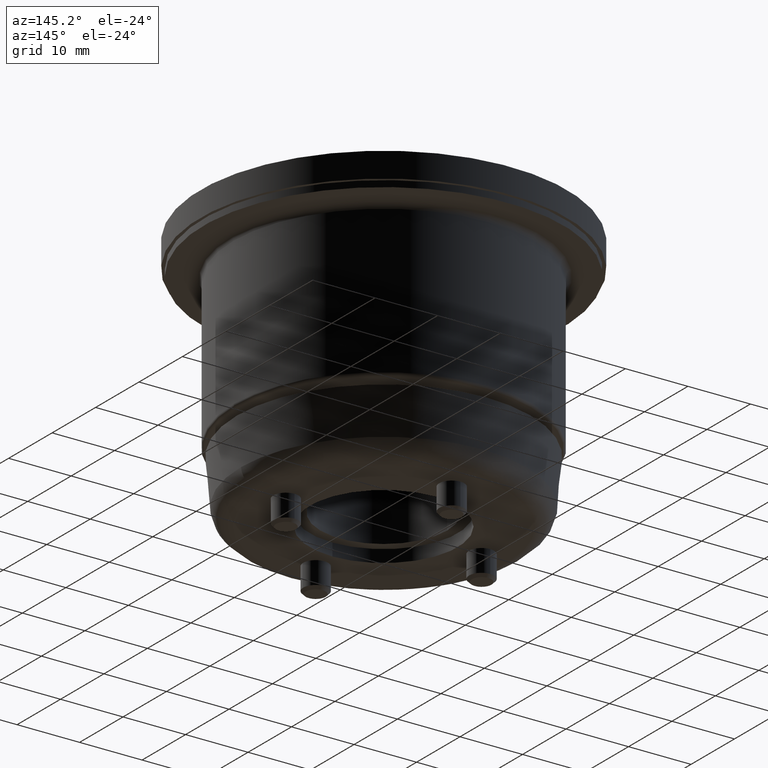
[diagram: clean part render]
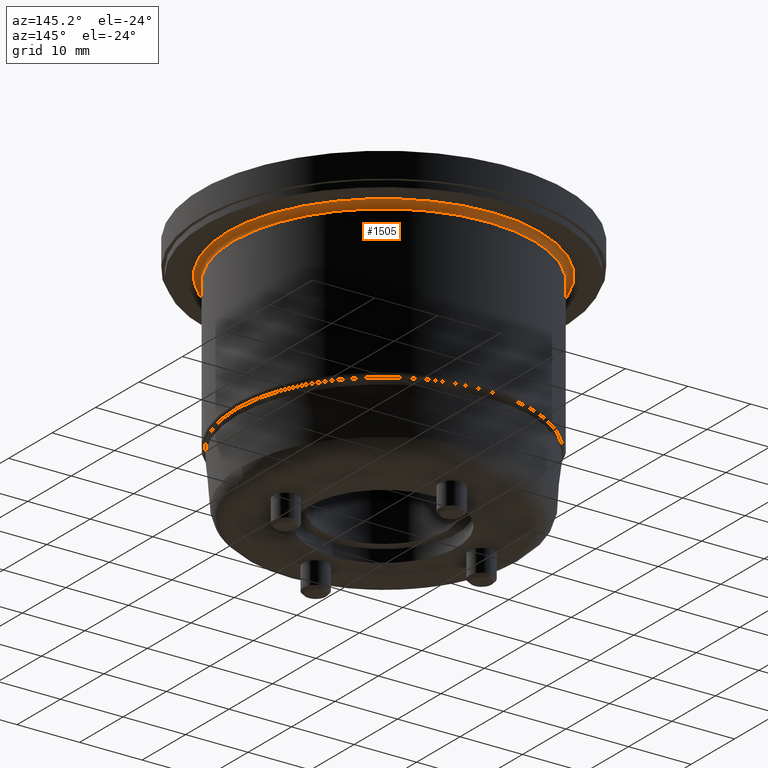
[diagram: same view with one face highlighted and labeled with its STEP entity id]
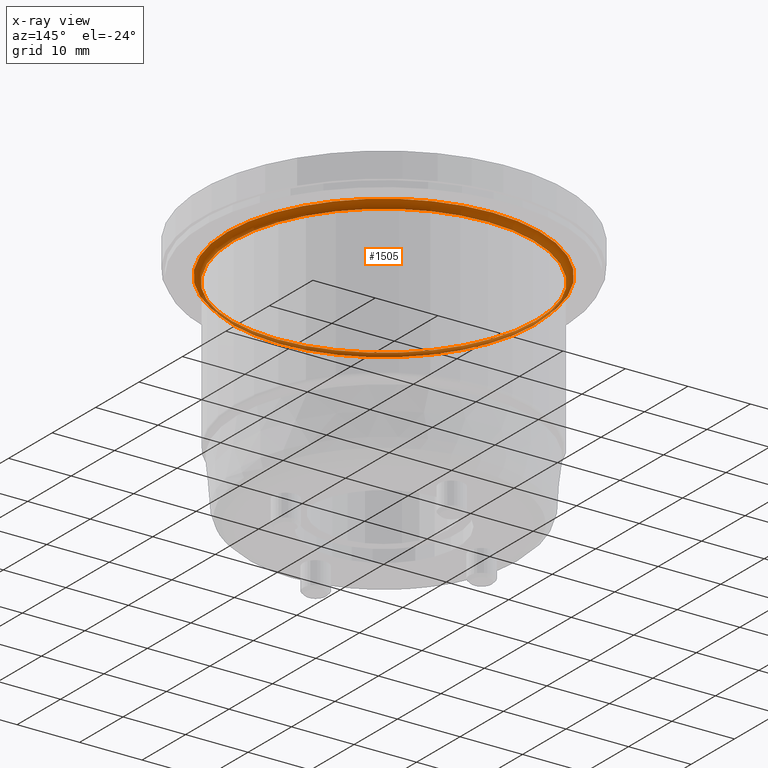
[diagram: x-ray of the same camera — body ghosted, the highlighted face saturated]
A machine part, auxiliary view. The second image highlights one B-rep face of the part: STEP entity #1505.
The next image is the same camera in x-ray: the body ghosted, the highlighted face saturated — about 25% of this face is hidden behind the body in this view.
In plain terms, the highlighted toroidal blend (fillet) surface has major radius 25 mm and minor (blend) radius 1 mm.
Its self-contained STEP definition (entity closure, byte-faithful):
#312=FACE_OUTER_BOUND('',#401,.T.);
#401=EDGE_LOOP('',(#1075,#1076,#1077,#1078));
#536=CIRCLE('',#1721,25.);
#537=CIRCLE('',#1722,1.);
#538=CIRCLE('',#1723,24.);
#686=VERTEX_POINT('',#2546);
#687=VERTEX_POINT('',#2548);
#843=EDGE_CURVE('',#686,#686,#536,.T.);
#844=EDGE_CURVE('',#686,#687,#537,.T.);
#845=EDGE_CURVE('',#687,#687,#538,.T.);
#1075=ORIENTED_EDGE('',*,*,#843,.T.);
#1076=ORIENTED_EDGE('',*,*,#844,.T.);
#1077=ORIENTED_EDGE('',*,*,#845,.T.);
#1078=ORIENTED_EDGE('',*,*,#844,.F.);
#1490=TOROIDAL_SURFACE('',#1720,25.,1.);
#1505=ADVANCED_FACE('',(#312),#1490,.F.);
#1720=AXIS2_PLACEMENT_3D('',#2545,#1995,#1996);
#1721=AXIS2_PLACEMENT_3D('',#2547,#1997,#1998);
#1722=AXIS2_PLACEMENT_3D('',#2549,#1999,#2000);
#1723=AXIS2_PLACEMENT_3D('',#2550,#2001,#2002);
#1995=DIRECTION('center_axis',(0.,1.83697019872103E-16,-1.));
#1996=DIRECTION('ref_axis',(-1.,0.,0.));
#1997=DIRECTION('center_axis',(0.,1.83697019872103E-16,-1.));
#1998=DIRECTION('ref_axis',(-1.,7.65404249467096E-18,1.40602479624549E-33));
#1999=DIRECTION('center_axis',(-1.22464679914735E-16,-1.,-1.83697019872103E-16));
#2000=DIRECTION('ref_axis',(1.,-1.22464679914735E-16,0.));
#2001=DIRECTION('center_axis',(0.,-1.83697019872103E-16,1.));
#2002=DIRECTION('ref_axis',(-1.,7.65404249467096E-18,0.));
#2545=CARTESIAN_POINT('Origin',(-5.55111512312578E-16,5.55111512312578E-16,
33.));
#2546=CARTESIAN_POINT('',(25.,-2.88155356779468E-15,34.));
#2547=CARTESIAN_POINT('Origin',(-5.55111512312578E-16,3.71414492440474E-16,
34.));
#2548=CARTESIAN_POINT('',(24.,3.31056681039412E-15,33.));
#2549=CARTESIAN_POINT('Origin',(25.,-2.50650548555581E-15,33.));
#2550=CARTESIAN_POINT('Origin',(-5.55111512312578E-16,5.55111512312578E-16,
33.));